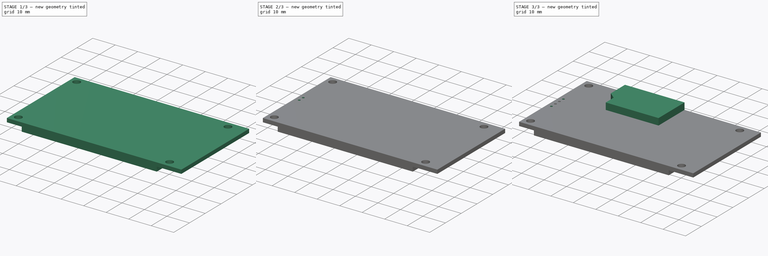
[diagram: build sequence overview — one tinted view per stage of 3, left to right]
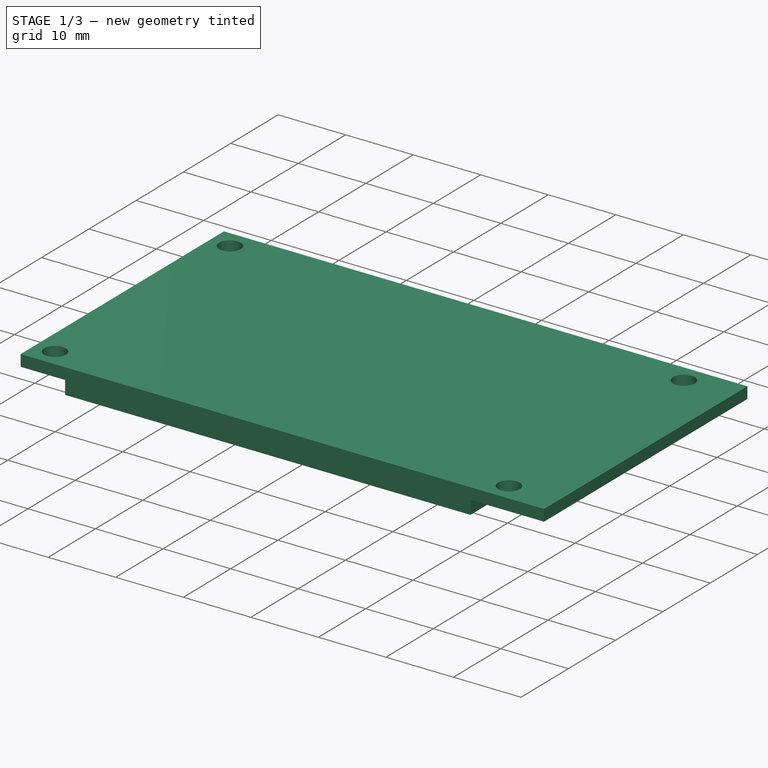
[diagram: stage 1 of 3 — iso view after this stage's code; geometry added in this stage tinted green]
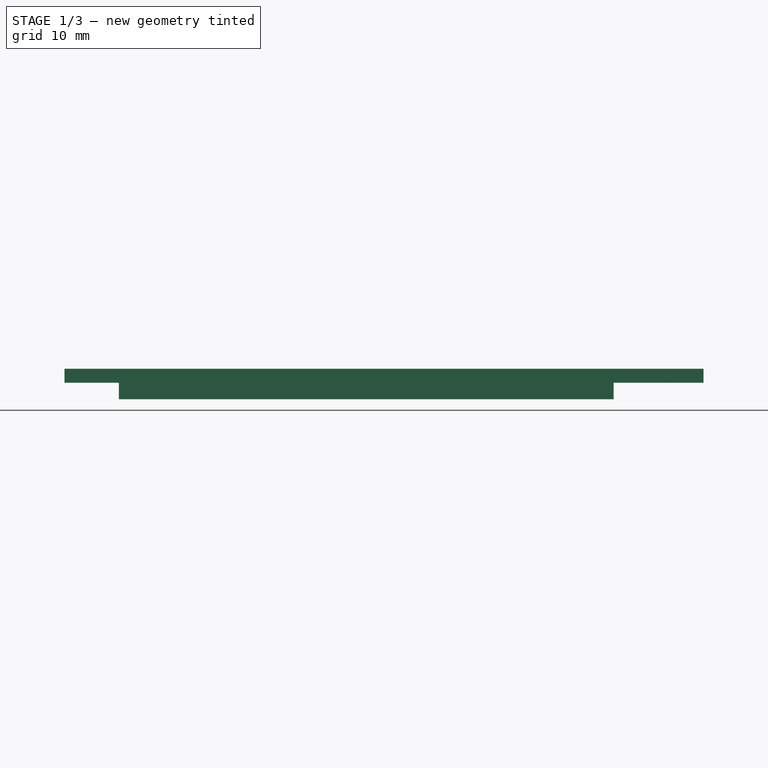
[diagram: stage 1 of 3 — front view after this stage's code; geometry added in this stage tinted green]
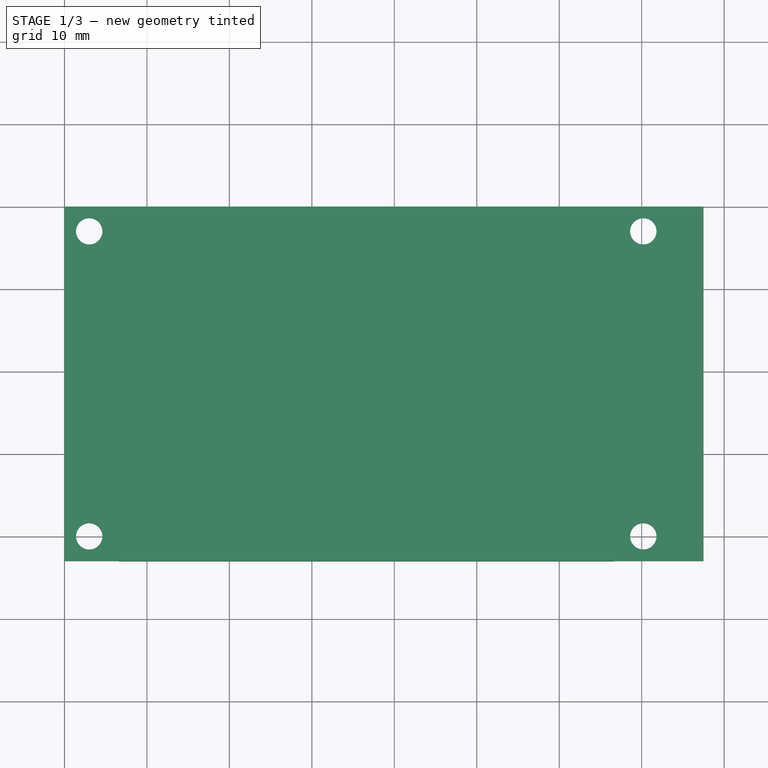
[diagram: stage 1 of 3 — top view after this stage's code; geometry added in this stage tinted green]
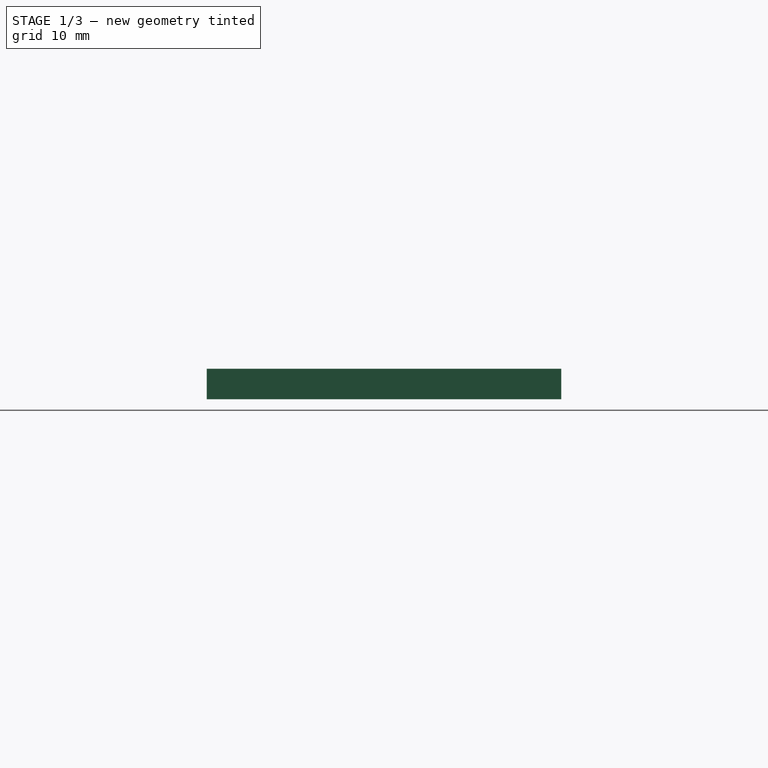
[diagram: stage 1 of 3 — right view after this stage's code; geometry added in this stage tinted green]
FCSTD DOCUMENT  (FreeCAD 0.14R3702 (Git))
Label: 2-4_tft_spi_240x320
License: CC-BY 3.0
LicenseURL: http://creativecommons.org/licenses/by/3.0/
objects: Sketcher::SketchObject×9, PartDesign::Pocket×5, PartDesign::Pad×3, Part::Feature×1
note: 26 computed .brp shape members not serialized (recipe doc carries the construction recipe); baked Part::Feature solids carry a one-line shape summary decoded from their .brp

FEATURE [Sketcher::SketchObject] Sketch
  sketch-geometry (4):
    g0: LineSegment StartX=0 StartY=0 StartZ=0 EndX=77.5 EndY=0 EndZ=0
    g1: LineSegment StartX=77.5 StartY=0 StartZ=0 EndX=77.5 EndY=-43 EndZ=0
    g2: LineSegment StartX=77.5 StartY=-43 StartZ=0 EndX=0 EndY=-43 EndZ=0
    g3: LineSegment StartX=0 StartY=-43 StartZ=0 EndX=0 EndY=0 EndZ=0
  constraints (11):
    c: Coincident(g0,g1)
    c: Coincident(g1,g2)
    c: Coincident(g2,g3)
    c: Coincident(g3,g0)
    c: Horizontal(g0)
    c: Horizontal(g2)
    c: Vertical(g1)
    c: Vertical(g3)
    c: Coincident(g0,g-1)
    c: DistanceX(g-1,g0) = 77.5
    c: DistanceY(g-1,g2) = -43
FEATURE [PartDesign::Pad] Pad
  Length = 1.7
  Length2 = 4
  Sketch = -> Sketch
  Type = 0
FEATURE [Sketcher::SketchObject] Sketch002
  Placement = pos=(0,0,0) rot=(1,0,0;3.14159rad)
  Support = -> Pad [Face5]
  sketch-geometry (4):
    g0: Circle CenterX=3 CenterY=40 CenterZ=0 NormalX=0 NormalY=0 NormalZ=1 Radius=1.6
    g1: Circle CenterX=70.2 CenterY=3 CenterZ=0 NormalX=0 NormalY=0 NormalZ=1 Radius=1.6
    g2: Circle CenterX=70.2 CenterY=40 CenterZ=0 NormalX=0 NormalY=0 NormalZ=1 Radius=1.6
    g3: Circle CenterX=3 CenterY=3 CenterZ=0 NormalX=0 NormalY=0 NormalZ=1 Radius=1.6
  constraints (12):
    c: Equal(g1,g2)
    c: Equal(g2,g0)
    c: Equal(g0,g3)
    c: DistanceX(g-1,g3) = 3
    c: DistanceY(g-1,g3) = 3
    c: Radius(g3) = 1.6
    c: DistanceX(g3,g1) = 67.2
    c: DistanceY(g3,g0) = 37
    c: DistanceY(g-1,g1) = 3
    c: DistanceX(g0,g2) = 67.2
    c: DistanceY(g2,g1) = -37
    c: DistanceX(g-1,g0) = 3
FEATURE [PartDesign::Pocket] Pocket
  Length = 5
  Sketch = -> Sketch002
  Type = 1
FEATURE [Sketcher::SketchObject] Sketch003
  Placement = pos=(0,0,0) rot=(1,0,0;3.14159rad)
  Support = -> Pocket [Face4]
  sketch-geometry (4):
    g0: LineSegment StartX=6.6 StartY=0 StartZ=0 EndX=66.6 EndY=0 EndZ=0
    g1: LineSegment StartX=66.6 StartY=0 StartZ=0 EndX=66.6 EndY=43 EndZ=0
    g2: LineSegment StartX=66.6 StartY=43 StartZ=0 EndX=6.6 EndY=43 EndZ=0
    g3: LineSegment StartX=6.6 StartY=43 StartZ=0 EndX=6.6 EndY=0 EndZ=0
  constraints (12):
    c: Coincident(g0,g1)
    c: Coincident(g1,g2)
    c: Coincident(g2,g3)
    c: Coincident(g3,g0)
    c: Horizontal(g0)
    c: Horizontal(g2)
    c: Vertical(g1)
    c: Vertical(g3)
    c: PointOnObject(g0,g-1)
    c: DistanceX(g-1,g0) = 6.6
    c: DistanceY(g2,g0) = -43
    c: DistanceX(g2,g1) = 60
FEATURE [PartDesign::Pad] Pad001
  Length = 2
  Length2 = 4
  Sketch = -> Sketch003
  Type = 0
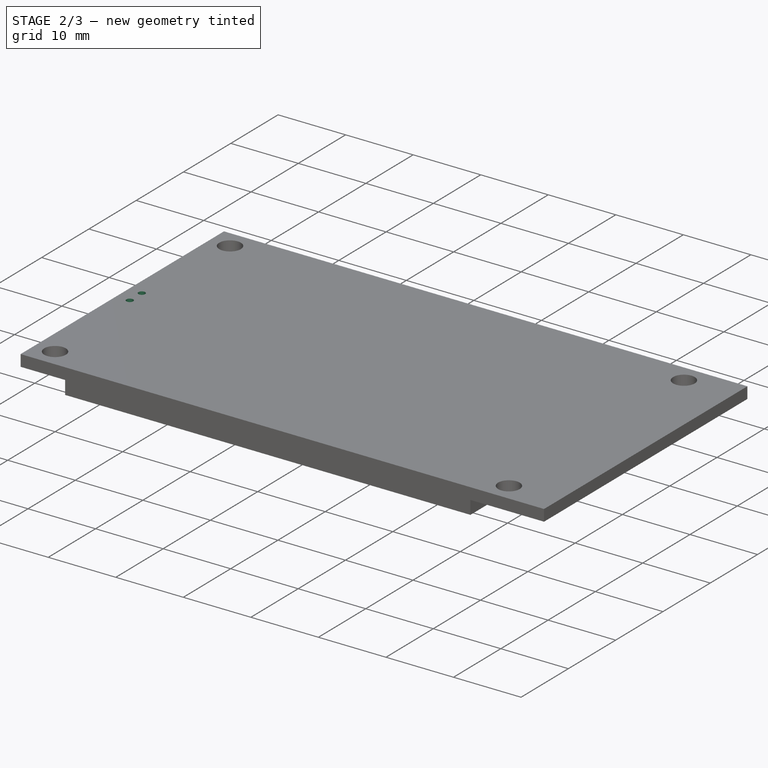
[diagram: stage 2 of 3 — iso view after this stage's code; geometry added in this stage tinted green]
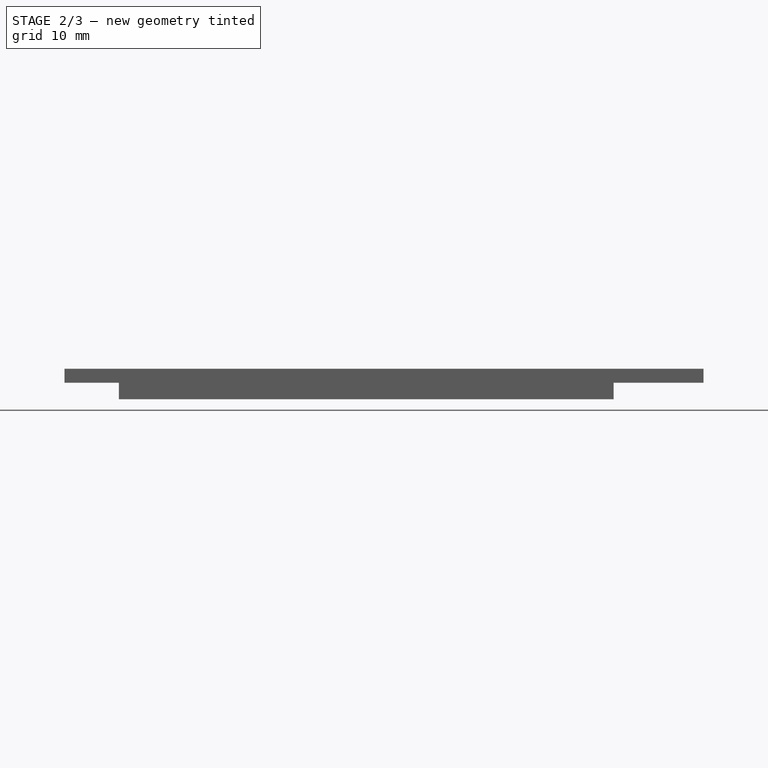
[diagram: stage 2 of 3 — front view after this stage's code; geometry added in this stage tinted green]
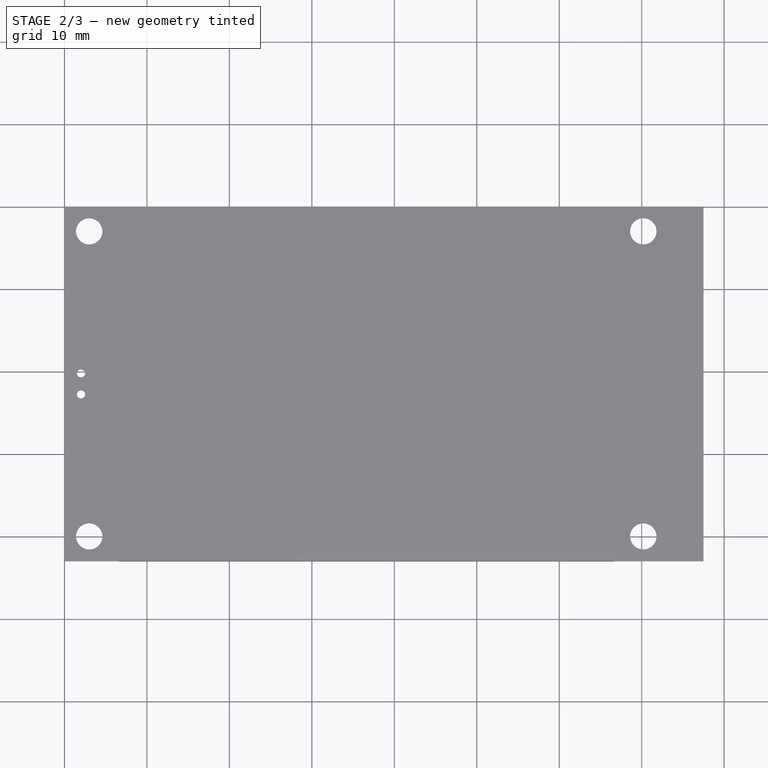
[diagram: stage 2 of 3 — top view after this stage's code; geometry added in this stage tinted green]
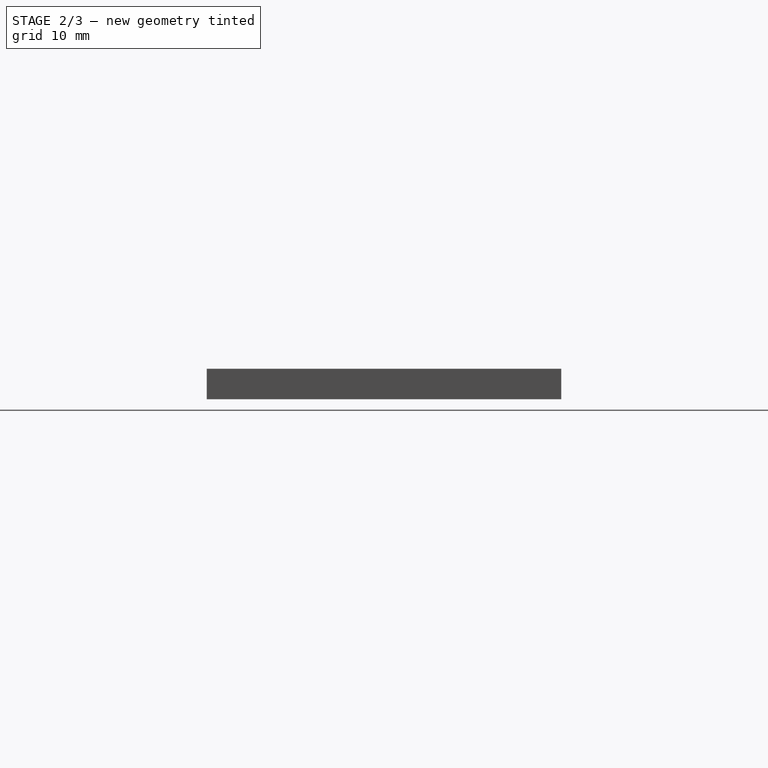
[diagram: stage 2 of 3 — right view after this stage's code; geometry added in this stage tinted green]
FEATURE [Sketcher::SketchObject] Sketch004
  ExternalGeometry = -> [Pad001]
  Placement = pos=(0,0,-2) rot=(1,0,0;3.14159rad)
  Support = -> Pad001 [Face16]
  sketch-geometry (4):
    g0: LineSegment StartX=59.8299 StartY=1 StartZ=0 EndX=7.6 EndY=1 EndZ=0
    g1: LineSegment StartX=7.6 StartY=1 StartZ=0 EndX=7.6 EndY=42 EndZ=0
    g2: LineSegment StartX=7.6 StartY=42 StartZ=0 EndX=59.8299 EndY=42 EndZ=0
    g3: LineSegment StartX=59.8299 StartY=42 StartZ=0 EndX=59.8299 EndY=1 EndZ=0
  constraints (12):
    c: Coincident(g0,g1)
    c: Coincident(g1,g2)
    c: Coincident(g2,g3)
    c: Coincident(g3,g0)
    c: Horizontal(g0)
    c: Horizontal(g2)
    c: Vertical(g1)
    c: Vertical(g3)
    c: DistanceY(g-1,g0) = 1
    c: DistanceY(g1,g-3) = 1
    c: Distance(g1,g0) = 66.4
    c: DistanceX(g1,g-3) = -1
FEATURE [PartDesign::Pocket] Pocket001
  Length = 0.1
  Sketch = -> Sketch004
  Type = 0
FEATURE [Part::Feature] Shape
  Placement = pos=(74.75,-38,1.7) rot=(0,0,1;1.5708rad)
  shape: bbox 2.54 x 35.56 x 11.2 mm, 504 faces, 28 solids (baked)
FEATURE [Sketcher::SketchObject] Sketch005
  Placement = pos=(0,0,0) rot=(1,0,0;3.14159rad)
  Support = -> Pocket001 [Face4]
  sketch-geometry (7):
    g0: Circle CenterX=3 CenterY=25.31 CenterZ=0 NormalX=0 NormalY=0 NormalZ=1 Radius=0
    g1: Circle CenterX=3 CenterY=17.69 CenterZ=0 NormalX=0 NormalY=0 NormalZ=1 Radius=0
    g2: LineSegment [constr] StartX=3 StartY=3 StartZ=0 EndX=3 EndY=17.69 EndZ=0
    g3: LineSegment [constr] StartX=3 StartY=17.69 StartZ=0 EndX=3 EndY=25.31 EndZ=0
    g4: LineSegment [constr] StartX=3 StartY=25.31 StartZ=0 EndX=3 EndY=40 EndZ=0
    g5: Circle CenterX=2 CenterY=20.23 CenterZ=0 NormalX=0 NormalY=0 NormalZ=1 Radius=0.5
    g6: Circle CenterX=2 CenterY=22.77 CenterZ=0 NormalX=0 NormalY=0 NormalZ=1 Radius=0.5
  constraints (16):
    c: Coincident(g2,g1)
    c: Coincident(g2,g3)
    c: Coincident(g3,g0)
    c: Vertical(g3)
    c: Tangent(g3,g1)
    c: Coincident(g3,g4)
    c: Tangent(g4,g0)
    c: Tangent(g2,g3)
    c: Equal(g2,g4)
    c: Radius(g6) = 0.5
    c: DistanceY(g5,g6) = 2.54
    c: DistanceY(g6,g0) = 2.54
    c: Equal(g6,g5)
    c: DistanceY(g1,g5) = 2.54
    c: DistanceX(g-1,g6) = 2
    c: DistanceX(g-1,g5) = 2
FEATURE [PartDesign::Pocket] Pocket002
  Length = 5
  Sketch = -> Sketch005
  Type = 1
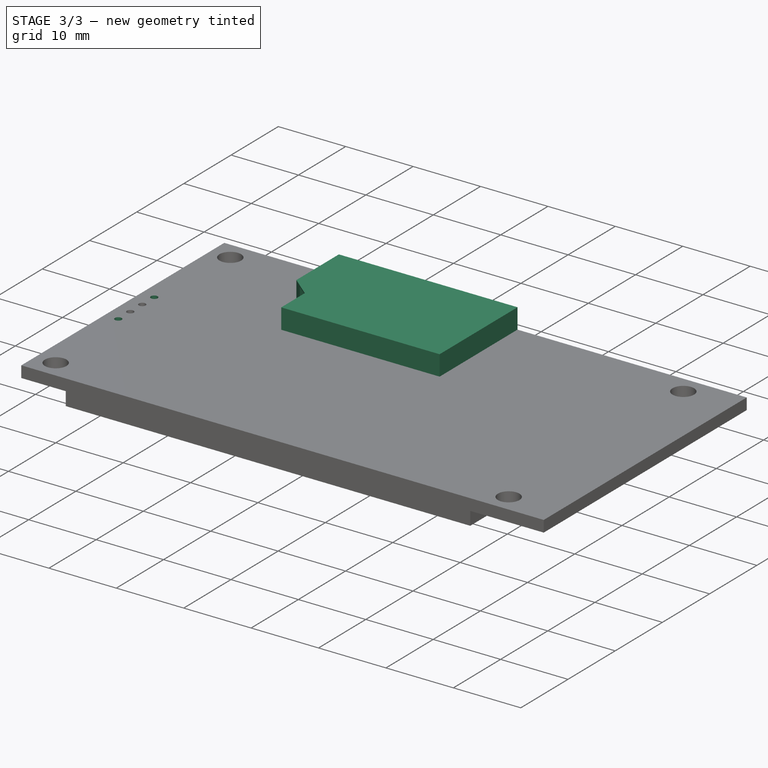
[diagram: stage 3 of 3 — iso view after this stage's code; geometry added in this stage tinted green]
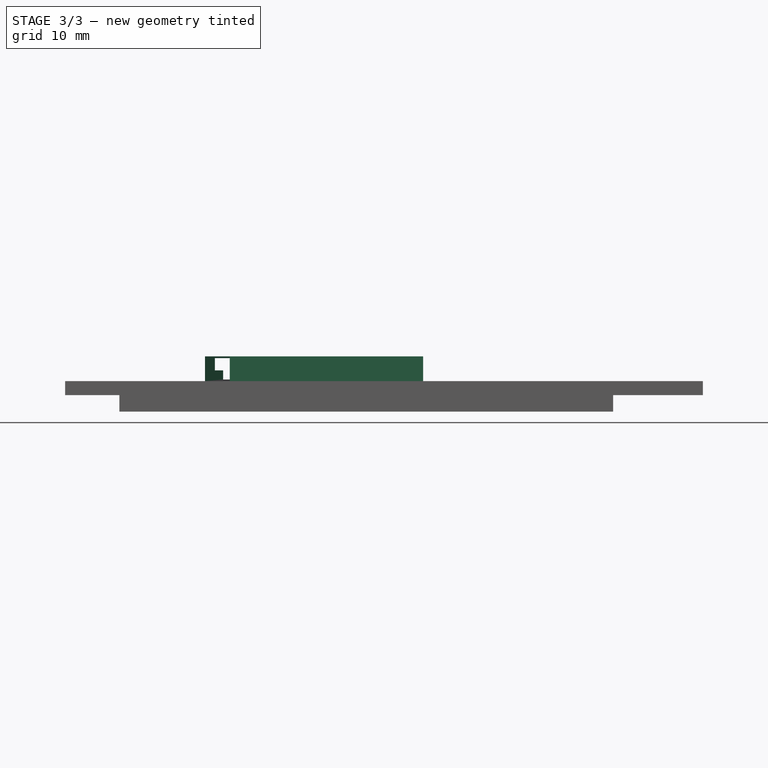
[diagram: stage 3 of 3 — front view after this stage's code; geometry added in this stage tinted green]
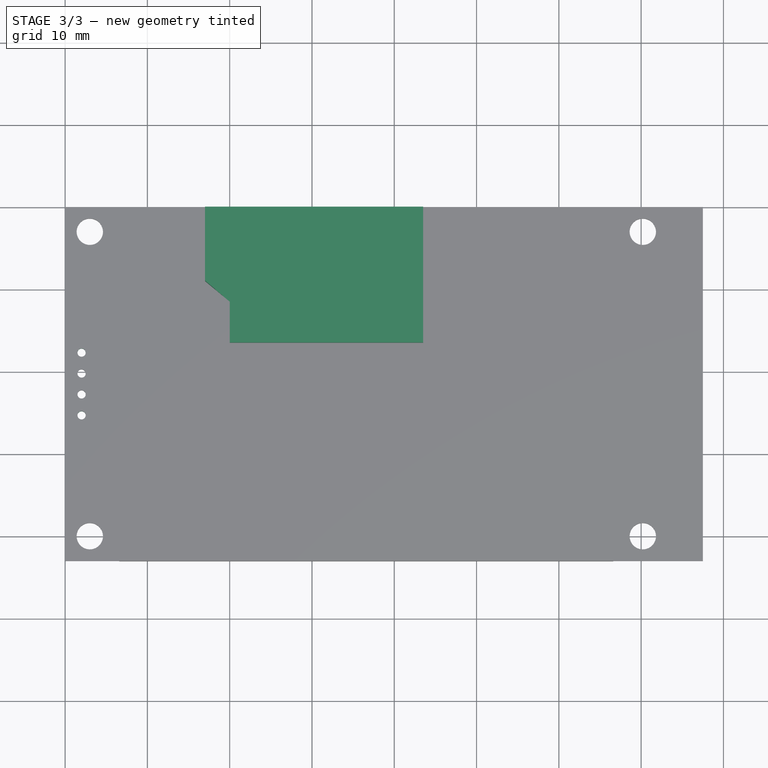
[diagram: stage 3 of 3 — top view after this stage's code; geometry added in this stage tinted green]
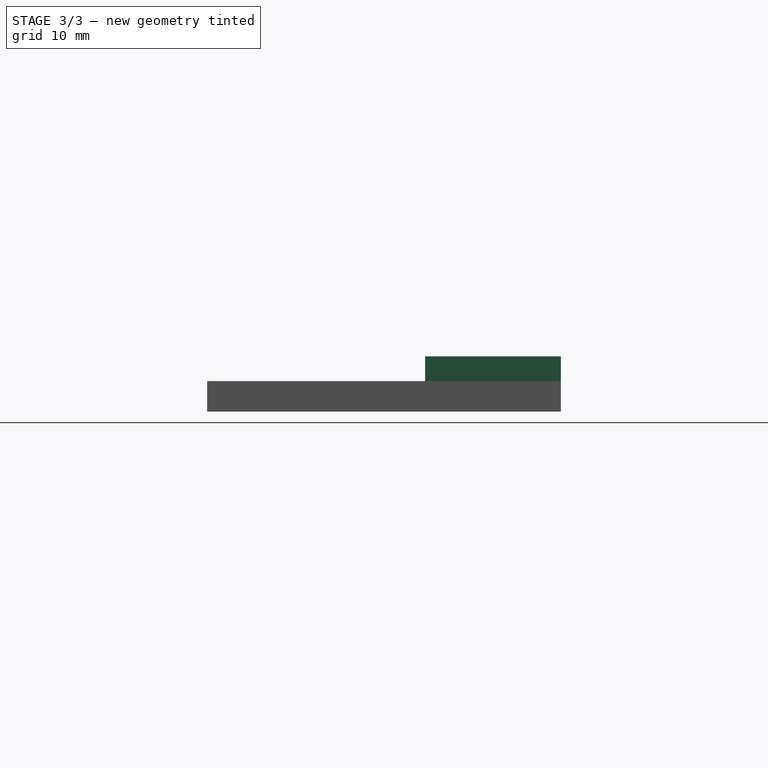
[diagram: stage 3 of 3 — right view after this stage's code; geometry added in this stage tinted green]
FEATURE [Sketcher::SketchObject] Sketch006
  Placement = pos=(0,0,0) rot=(1,0,0;3.14159rad)
  Support = -> Pocket002 [Face4]
  sketch-geometry (2):
    g0: Circle CenterX=2 CenterY=25.31 CenterZ=0 NormalX=0 NormalY=0 NormalZ=1 Radius=0.5
    g1: Circle CenterX=2 CenterY=17.69 CenterZ=0 NormalX=0 NormalY=0 NormalZ=1 Radius=0.5
  constraints (4):
    c: Equal(g1,g0)
    c: Radius(g0) = 0.5
    c: DistanceX(g-1,g1) = 2
    c: DistanceX(g-1,g0) = 2
FEATURE [PartDesign::Pocket] Pocket003
  Length = 5
  Sketch = -> Sketch006
  Type = 1
FEATURE [Sketcher::SketchObject] Sketch007
  Placement = pos=(0,0,1.7) rot=(0,0,1;0rad)
  Support = -> Pocket003 [Face5]
FEATURE [Sketcher::SketchObject] Sketch008
  Placement = pos=(0,0,1.7) rot=(0,0,1;0rad)
  Support = -> Pocket003 [Face5]
  sketch-geometry (6):
    g0: LineSegment StartX=17 StartY=0 StartZ=0 EndX=17 EndY=-9 EndZ=0
    g1: LineSegment StartX=17 StartY=-9 StartZ=0 EndX=20 EndY=-11.5 EndZ=0
    g2: LineSegment StartX=20 StartY=-11.5 StartZ=0 EndX=20 EndY=-16.5 EndZ=0
    g3: LineSegment StartX=20 StartY=-16.5 StartZ=0 EndX=43.5 EndY=-16.5 EndZ=0
    g4: LineSegment StartX=43.5 StartY=-16.5 StartZ=0 EndX=43.5 EndY=0 EndZ=0
    g5: LineSegment StartX=43.5 StartY=0 StartZ=0 EndX=17 EndY=0 EndZ=0
  constraints (18):
    c: PointOnObject(g0,g-1)
    c: Vertical(g0)
    c: Coincident(g0,g1)
    c: Coincident(g1,g2)
    c: Vertical(g2)
    c: Coincident(g2,g3)
    c: Horizontal(g3)
    c: Coincident(g3,g4)
    c: PointOnObject(g4,g-1)
    c: Vertical(g4)
    c: Coincident(g4,g5)
    c: Coincident(g5,g0)
    c: DistanceY(g3,g4) = 16.5
    c: DistanceX(g5) = -26.5
    c: DistanceY(g0) = -9
    c: DistanceX(g3) = 23.5
    c: DistanceY(g2) = -5
    c: DistanceX(g-1,g0) = 17
FEATURE [PartDesign::Pad] Pad002
  Length = 3
  Length2 = 4
  Sketch = -> Sketch008
  Type = 0
FEATURE [Sketcher::SketchObject] Sketch009
  ExternalGeometry = -> [Pad002]
  Placement = pos=(0,0,0) rot=(0,0.707107,0.707107;3.14159rad)
  Support = -> Pad002 [Face10]
  sketch-geometry (8):
    g0: LineSegment StartX=-42.3 StartY=4.5 StartZ=0 EndX=-42.3 EndY=3 EndZ=0
    g1: LineSegment StartX=-42.3 StartY=3 StartZ=0 EndX=-41.3 EndY=3 EndZ=0
    g2: LineSegment StartX=-41.3 StartY=3 StartZ=0 EndX=-41.3 EndY=1.9 EndZ=0
    g3: LineSegment StartX=-41.3 StartY=1.9 StartZ=0 EndX=-19.2 EndY=1.9 EndZ=0
    g4: LineSegment StartX=-19.2 StartY=1.9 StartZ=0 EndX=-19.2 EndY=3 EndZ=0
    g5: LineSegment StartX=-19.2 StartY=3 StartZ=0 EndX=-18.2 EndY=3 EndZ=0
    g6: LineSegment StartX=-18.2 StartY=3 StartZ=0 EndX=-18.2 EndY=4.5 EndZ=0
    g7: LineSegment StartX=-18.2 StartY=4.5 StartZ=0 EndX=-42.3 EndY=4.5 EndZ=0
  constraints (24):
    c: Vertical(g0)
    c: Coincident(g0,g1)
    c: Horizontal(g1)
    c: Coincident(g1,g2)
    c: Vertical(g2)
    c: Coincident(g2,g3)
    c: Horizontal(g3)
    c: Coincident(g3,g4)
    c: Vertical(g4)
    c: Coincident(g4,g5)
    c: Coincident(g5,g6)
    c: Coincident(g6,g7)
    c: Horizontal(g7)
    c: Coincident(g0,g7)
    c: Horizontal(g5)
    c: Equal(g0,g6)
    c: Vertical(g6)
    c: Equal(g5,g1)
    c: DistanceY(g-3,g0) = -0.2
    c: DistanceX(g0,g-3) = -1.2
    c: DistanceX(g6,g-3) = 1.2
    c: DistanceY(g6) = 1.5
    c: DistanceY(g3,g-4) = -0.2
    c: DistanceX(g5) = 1
FEATURE [PartDesign::Pocket] Pocket004
  Length = 13
  Sketch = -> Sketch009
  Type = 0
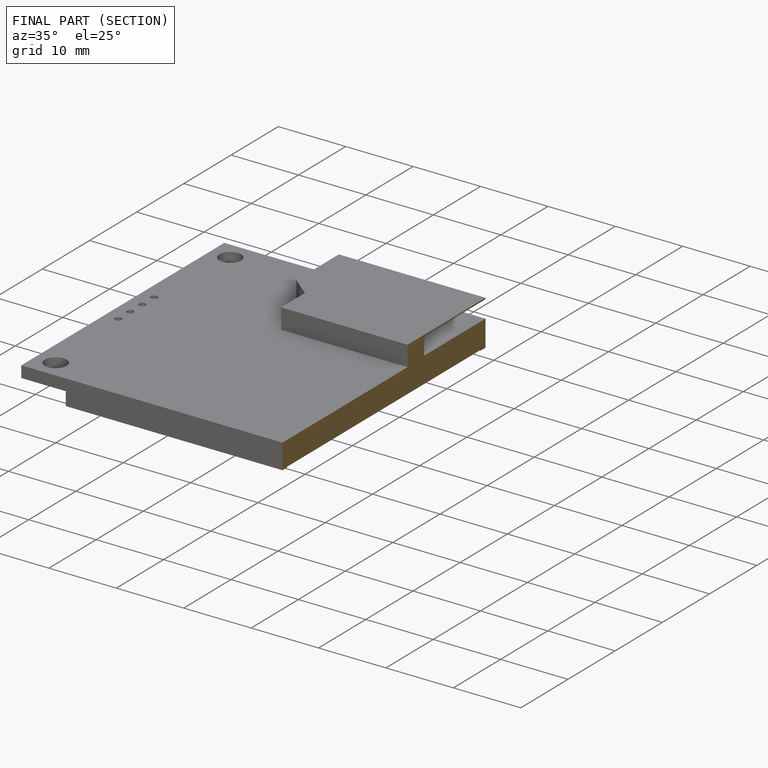
[diagram: finished part — half-section view (interior)]
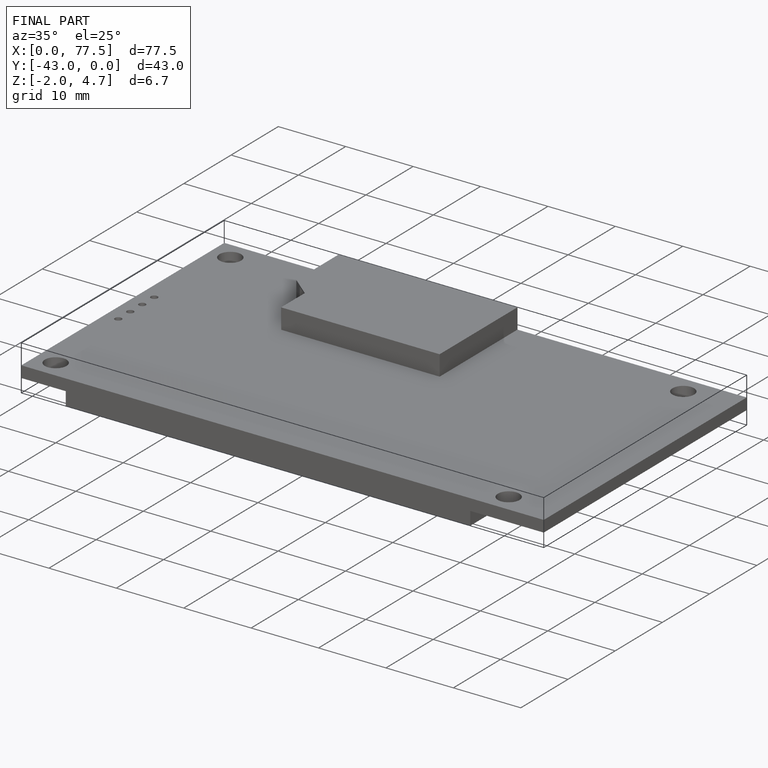
[diagram: finished part — iso view with bounding-box wireframe]
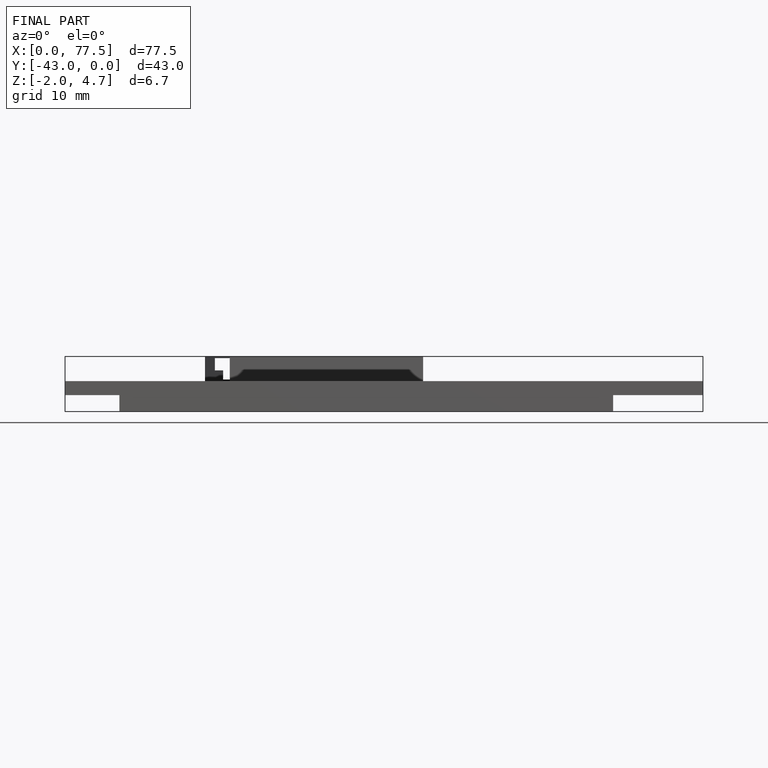
[diagram: finished part — front view with bounding-box wireframe]
